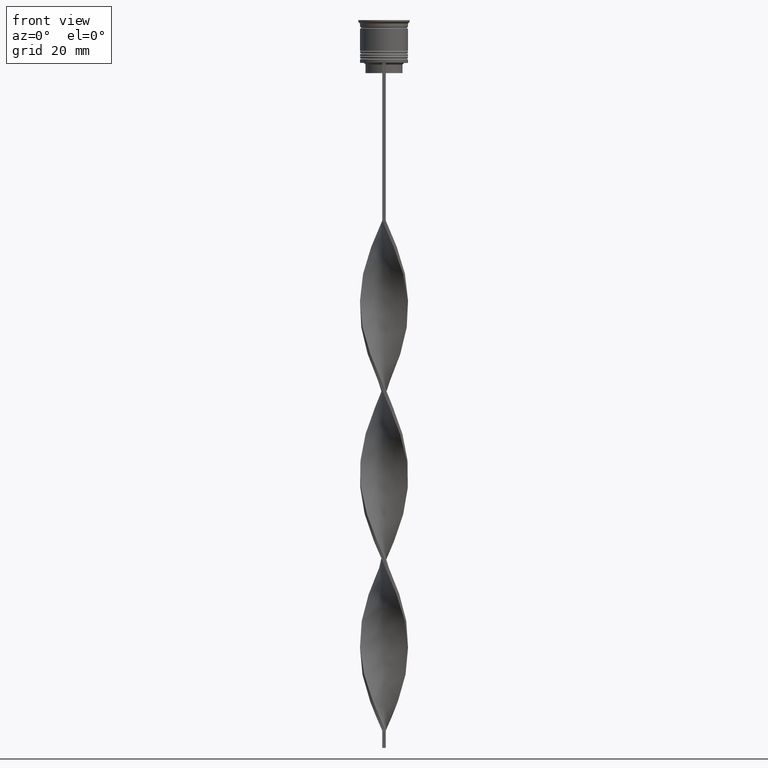
[diagram: clean part render]
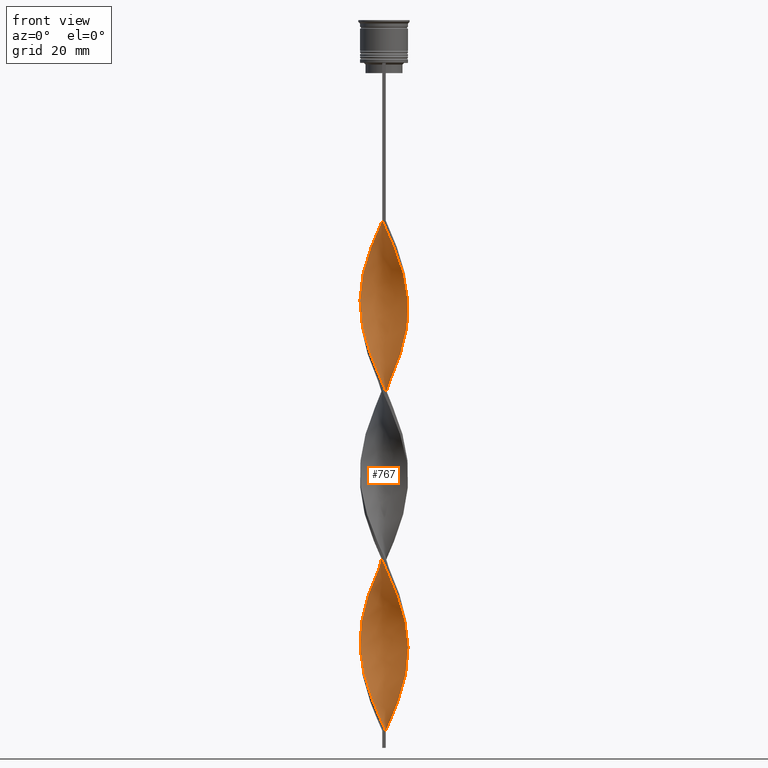
[diagram: same view with one face highlighted and labeled with its STEP entity id]
A machine part, front view. The second image highlights one B-rep face of the part: STEP entity #767.
In plain terms, the highlighted face is a freeform B-spline surface patch.
Its self-contained STEP definition (entity closure, byte-faithful):
#1 = CARTESIAN_POINT ( 'NONE',  ( 2.406820825421679189, 6.624205700879066683, -203.1176470588235361 ) ) ;
#7 =( BOUNDED_SURFACE ( )  B_SPLINE_SURFACE ( 1, 2, ( 
 ( #1530, #975, #2158, #280, #2481, #1247, #3687, #955, #301, #3058, #349, #2176, #3367, #1867, #913, #1481, #2698, #1409, #2659, #3869, #2354, #3287, #1139, #3562, #1762, #1198, #2998, #283, #2398, #3243, #531, #834, #3605, #304, #3224, #1807, #3518, #916, #873, #2094, #3260, #1503, #1725, #2720, #1228, #2333, #2936, #226, #1744, #1424, #1444, #1566, #1704, #2237, #501, #1650, #1924, #2918, #3174, #2864, #173, #1315, #1069, #3776, #2519, #1089, #1978, #3132, #489, #3426, #432, #1814, #3895, #1492, #270, #2409, #311, #1472, #1514, #2225, #3359, #3416, #2787, #663, #85, #339, #48, #2765, #359, #3826, #2383, #99, #3121, #904, #1796, #314, #3007, #1611, #2707, #1, #2731, #2032, #172 ),
 ( #1437, #3556, #2675, #2390, #3278, #587, #1221, #1464, #3579, #590, #2996, #991, #10, #3598, #2084, #622, #1820, #1542, #2045, #952, #2639, #1523, #2738, #34, #1242, #277, #1498, #3623, #1848, #2131, #3347, #651, #3882, #3576, #3864, #3053, #3364, #2368, #2455, #2674, #2434, #3010, #3641, #2712, #11, #885, #344, #949, #1780, #668, #3030, #2992, #1220, #1191, #2059, #3064, #2389, #3661, #604, #3277, #363, #926, #1801, #1544, #1257, #2087, #2755, #52, #909, #970, #586, #3599, #1177, #1477, #2154, #1863, #323, #2692, #3301, #297, #2415, #2106, #3322, #623, #1822, #2211, #752, #3422, #1005, #772, #3753, #733, #1935, #1899, #128, #2189, #1956, #3143, #2171, #1641, #1918, #2858, #152 ) ),
 .UNSPECIFIED., .F., .F., .F. ) 
 B_SPLINE_SURFACE_WITH_KNOTS ( ( 2, 2 ),
 ( 3, 2, 2, 2, 2, 2, 2, 2, 2, 2, 2, 2, 2, 2, 2, 2, 2, 2, 2, 2, 2, 2, 2, 2, 2, 2, 2, 2, 2, 2, 2, 2, 2, 2, 2, 2, 2, 2, 2, 2, 2, 2, 2, 2, 2, 2, 2, 2, 2, 2, 2, 3 ),
 ( 0.000000000000000000, 1.000000000000000000 ),
 ( 0.000000000000000000, 0.01470588235294117627, 0.02941176470588235253, 0.04411764705882353227, 0.05882352941176470507, 0.07352941176470588480, 0.08823529411764706454, 0.1029411764705882304, 0.1176470588235294101, 0.1323529411764705899, 0.1470588235294117696, 0.1617647058823529493, 0.1764705882352941291, 0.1911764705882352811, 0.2058823529411764608, 0.2205882352941176405, 0.2352941176470588203, 0.2500000000000000000, 0.2647058823529411797, 0.2794117647058823595, 0.2941176470588235392, 0.3088235294117647189, 0.3235294117647058987, 0.3382352941176470784, 0.3529411764705882582, 0.3676470588235294379, 0.3823529411764705621, 0.3970588235294117418, 0.4117647058823529216, 0.4264705882352941013, 0.4411764705882352811, 0.4558823529411764608, 0.4705882352941176405, 0.4852941176470588203, 0.5000000000000000000, 0.5147058823529411242, 0.5294117647058823595, 0.5441176470588234837, 0.5588235294117647189, 0.5735294117647058432, 0.5882352941176470784, 0.6029411764705882026, 0.6176470588235294379, 0.6323529411764705621, 0.6470588235294117974, 0.6617647058823529216, 0.6764705882352941568, 0.6911764705882352811, 0.7058823529411765163, 0.7205882352941176405, 0.7352941176470588758, 0.7500000000000000000 ),
 .UNSPECIFIED. ) 
 GEOMETRIC_REPRESENTATION_ITEM ( )  RATIONAL_B_SPLINE_SURFACE ( (
 ( 1.000000000000000000, 0.9957341762950344677, 1.000000000000000000, 0.9957341762950344677, 1.000000000000000000, 0.9957341762950344677, 1.000000000000000000, 0.9957341762950344677, 1.000000000000000000, 0.9957341762950344677, 1.000000000000000000, 0.9957341762950344677, 1.000000000000000000, 0.9957341762950344677, 1.000000000000000000, 0.9957341762950344677, 1.000000000000000000, 0.9957341762950344677, 1.000000000000000000, 0.9957341762950344677, 1.000000000000000000, 0.9957341762950344677, 1.000000000000000000, 0.9957341762950344677, 1.000000000000000000, 0.9957341762950344677, 1.000000000000000000, 0.9957341762950344677, 1.000000000000000000, 0.9957341762950344677, 1.000000000000000000, 0.9957341762950344677, 1.000000000000000000, 0.9957341762950344677, 1.000000000000000000, 0.9957341762950344677, 1.000000000000000000, 0.9957341762950344677, 1.000000000000000000, 0.9957341762950344677, 1.000000000000000000, 0.9957341762950344677, 1.000000000000000000, 0.9957341762950344677, 1.000000000000000000, 0.9957341762950344677, 1.000000000000000000, 0.9957341762950344677, 1.000000000000000000, 0.9957341762950344677, 1.000000000000000000, 0.9957341762950344677, 1.000000000000000000, 0.9957341762950344677, 1.000000000000000000, 0.9957341762950344677, 1.000000000000000000, 0.9957341762950344677, 1.000000000000000000, 0.9957341762950344677, 1.000000000000000000, 0.9957341762950344677, 1.000000000000000000, 0.9957341762950344677, 1.000000000000000000, 0.9957341762950344677, 1.000000000000000000, 0.9957341762950344677, 1.000000000000000000, 0.9957341762950344677, 1.000000000000000000, 0.9957341762950344677, 1.000000000000000000, 0.9957341762950344677, 1.000000000000000000, 0.9957341762950344677, 1.000000000000000000, 0.9957341762950344677, 1.000000000000000000, 0.9957341762950344677, 1.000000000000000000, 0.9957341762950344677, 1.000000000000000000, 0.9957341762950344677, 1.000000000000000000, 0.9957341762950344677, 1.000000000000000000, 0.9957341762950344677, 1.000000000000000000, 0.9957341762950344677, 1.000000000000000000, 0.9957341762950344677, 1.000000000000000000, 0.9957341762950344677, 1.000000000000000000, 0.9957341762950344677, 1.000000000000000000, 0.9957341762950344677, 1.000000000000000000, 0.9957341762950344677, 1.000000000000000000, 0.9957341762950344677, 1.000000000000000000),
 ( 1.000000000000000000, 0.9957341762950344677, 1.000000000000000000, 0.9957341762950344677, 1.000000000000000000, 0.9957341762950344677, 1.000000000000000000, 0.9957341762950344677, 1.000000000000000000, 0.9957341762950344677, 1.000000000000000000, 0.9957341762950344677, 1.000000000000000000, 0.9957341762950344677, 1.000000000000000000, 0.9957341762950344677, 1.000000000000000000, 0.9957341762950344677, 1.000000000000000000, 0.9957341762950344677, 1.000000000000000000, 0.9957341762950344677, 1.000000000000000000, 0.9957341762950344677, 1.000000000000000000, 0.9957341762950344677, 1.000000000000000000, 0.9957341762950344677, 1.000000000000000000, 0.9957341762950344677, 1.000000000000000000, 0.9957341762950344677, 1.000000000000000000, 0.9957341762950344677, 1.000000000000000000, 0.9957341762950344677, 1.000000000000000000, 0.9957341762950344677, 1.000000000000000000, 0.9957341762950344677, 1.000000000000000000, 0.9957341762950344677, 1.000000000000000000, 0.9957341762950344677, 1.000000000000000000, 0.9957341762950344677, 1.000000000000000000, 0.9957341762950344677, 1.000000000000000000, 0.9957341762950344677, 1.000000000000000000, 0.9957341762950344677, 1.000000000000000000, 0.9957341762950344677, 1.000000000000000000, 0.9957341762950344677, 1.000000000000000000, 0.9957341762950344677, 1.000000000000000000, 0.9957341762950344677, 1.000000000000000000, 0.9957341762950344677, 1.000000000000000000, 0.9957341762950344677, 1.000000000000000000, 0.9957341762950344677, 1.000000000000000000, 0.9957341762950344677, 1.000000000000000000, 0.9957341762950344677, 1.000000000000000000, 0.9957341762950344677, 1.000000000000000000, 0.9957341762950344677, 1.000000000000000000, 0.9957341762950344677, 1.000000000000000000, 0.9957341762950344677, 1.000000000000000000, 0.9957341762950344677, 1.000000000000000000, 0.9957341762950344677, 1.000000000000000000, 0.9957341762950344677, 1.000000000000000000, 0.9957341762950344677, 1.000000000000000000, 0.9957341762950344677, 1.000000000000000000, 0.9957341762950344677, 1.000000000000000000, 0.9957341762950344677, 1.000000000000000000, 0.9957341762950344677, 1.000000000000000000, 0.9957341762950344677, 1.000000000000000000, 0.9957341762950344677, 1.000000000000000000, 0.9957341762950344677, 1.000000000000000000, 0.9957341762950344677, 1.000000000000000000) ) ) 
 REPRESENTATION_ITEM ( '' )  SURFACE ( )  );
#10 = CARTESIAN_POINT ( 'NONE',  ( -6.489012217373707259, 2.672586844758237934, -76.02941176470586981 ) ) ;
#11 = CARTESIAN_POINT ( 'NONE',  ( 5.887437909151305604, -3.819433841014677533, -122.7745098039215605 ) ) ;
#13 = CARTESIAN_POINT ( 'NONE',  ( -4.856933420439688120, -5.107160209221786928, -194.3529411764705799 ) ) ;
#24 = CARTESIAN_POINT ( 'NONE',  ( -2.406820825421679189, 6.624205700879072012, -162.2156862745098351 ) ) ;
#34 = CARTESIAN_POINT ( 'NONE',  ( -5.712673125104412719, -4.127741927368047570, -92.09803921568628482 ) ) ;
#36 = CARTESIAN_POINT ( 'NONE',  ( -5.887437909151306492, 3.819433841014676645, -172.4411764705882035 ) ) ;
#48 = CARTESIAN_POINT ( 'NONE',  ( 7.016273413796890956, 0.1480114280955957262, -184.1274509803921546 ) ) ;
#52 = CARTESIAN_POINT ( 'NONE',  ( 0.1486455236942084146, 7.046331823121019688, -156.3725490196078454 ) ) ;
#85 = CARTESIAN_POINT ( 'NONE',  ( 6.924005054333587594, -1.143745604390631110, -181.2058823529411598 ) ) ;
#97 = DIRECTION ( 'NONE',  ( 0.000000000000000000, 1.000000000000000000, 0.000000000000000000 ) ) ;
#99 = CARTESIAN_POINT ( 'NONE',  ( 6.241360575439922620, 3.273882377329162985, -191.4313725490196134 ) ) ;
#112 = CARTESIAN_POINT ( 'NONE',  ( -0.1486455236942075542, -7.046331823121019688, -206.0392156862745026 ) ) ;
#115 = EDGE_CURVE ( 'NONE', #1829, #1219, #672, .T. ) ;
#124 = CARTESIAN_POINT ( 'NONE',  ( -7.002558135184068888, 0.7981649056490309757, -80.41176470588234793 ) ) ;
#125 = CARTESIAN_POINT ( 'NONE',  ( 2.994927778012247632, 6.346684772736912450, -102.3235294117646959 ) ) ;
#128 = CARTESIAN_POINT ( 'NONE',  ( -4.346365046915573238, -5.509910242367893396, -195.8137254901960773 ) ) ;
#132 = CARTESIAN_POINT ( 'NONE',  ( -0.5000000000000000000, -6.999999999999997335, -58.50000000000000000 ) ) ;
#147 = CARTESIAN_POINT ( 'NONE',  ( -5.712673125104412719, -4.127741927368047570, -92.09803921568628482 ) ) ;
#152 = CARTESIAN_POINT ( 'NONE',  ( 0.4999999999999991673, -7.000000000000002665, -207.5000000000000000 ) ) ;
#165 = CARTESIAN_POINT ( 'NONE',  ( -5.284803272772045979, 4.617451068294913696, -122.7745098039215605 ) ) ;
#172 = CARTESIAN_POINT ( 'NONE',  ( 0.5000000000000008882, 6.999999999999997335, -207.5000000000000000 ) ) ;
#173 = CARTESIAN_POINT ( 'NONE',  ( -5.085373964136228331, -4.836214598721334745, -146.1470588235294201 ) ) ;
#181 = CARTESIAN_POINT ( 'NONE',  ( -4.346365046915568797, 5.509910242367891620, -119.8529411764705799 ) ) ;
#198 = CARTESIAN_POINT ( 'NONE',  ( -4.110133708006299180, 5.688303868668623586, -67.26470588235292780 ) ) ;
#202 = CARTESIAN_POINT ( 'NONE',  ( -2.994927778012248520, -6.346684772736912450, -151.9901960784313530 ) ) ;
#215 = CARTESIAN_POINT ( 'NONE',  ( -6.241360575439923508, -3.273882377329162985, -141.7647058823529562 ) ) ;
#226 = CARTESIAN_POINT ( 'NONE',  ( -6.373874598089922294, 3.007758344858553201, -127.1568627450980102 ) ) ;
#230 = CARTESIAN_POINT ( 'NONE',  ( 6.595948007173689120, -2.396553752090988088, -178.2843137254901933 ) ) ;
#270 = CARTESIAN_POINT ( 'NONE',  ( 3.259916572276681634, -6.214736031545974981, -166.5980392156862706 ) ) ;
#277 = CARTESIAN_POINT ( 'NONE',  ( -4.856933420439688120, -5.107160209221786928, -95.01960784313725128 ) ) ;
#280 = CARTESIAN_POINT ( 'NONE',  ( 1.440874626053873842, -6.899041090270179311, -62.88235294117647811 ) ) ;
#283 = CARTESIAN_POINT ( 'NONE',  ( 4.637232685409776067, 5.307443892742482738, -97.94117647058824616 ) ) ;
#286 = CARTESIAN_POINT ( 'NONE',  ( -0.7947600748740422105, -6.972686456695599944, -105.2450980392156765 ) ) ;
#297 = CARTESIAN_POINT ( 'NONE',  ( -6.241360575439927061, 3.273882377329165205, -173.9019607843137294 ) ) ;
#301 = CARTESIAN_POINT ( 'NONE',  ( 4.346365046915568797, -5.509910242367891620, -70.18627450980390847 ) ) ;
#304 = CARTESIAN_POINT ( 'NONE',  ( 1.148645523694207249, 6.953668176878983864, -106.7058823529412024 ) ) ;
#311 = CARTESIAN_POINT ( 'NONE',  ( 4.346365046915568797, -5.509910242367891620, -169.5196078431372371 ) ) ;
#314 = CARTESIAN_POINT ( 'NONE',  ( 4.637232685409776067, 5.307443892742482738, -197.2745098039215463 ) ) ;
#323 = CARTESIAN_POINT ( 'NONE',  ( -5.085373964136232772, 4.836214598721336522, -169.5196078431372371 ) ) ;
#326 = CARTESIAN_POINT ( 'NONE',  ( -6.924005054333593812, -1.143745604390630666, -184.1274509803921546 ) ) ;
#335 = CARTESIAN_POINT ( 'NONE',  ( -3.583034730602820961, 6.069163844594761770, -165.1372549019608016 ) ) ;
#339 = CARTESIAN_POINT ( 'NONE',  ( 7.029988692409719242, -0.5021420494578376914, -182.6666666666666572 ) ) ;
#344 = CARTESIAN_POINT ( 'NONE',  ( 6.489012217373708147, -2.672586844758236158, -125.6960784313725412 ) ) ;
#346 = CARTESIAN_POINT ( 'NONE',  ( -5.085373964136232772, 4.836214598721336522, -169.5196078431372371 ) ) ;
#349 = CARTESIAN_POINT ( 'NONE',  ( 5.284803272772046867, -4.617451068294912808, -73.10784313725488914 ) ) ;
#359 = CARTESIAN_POINT ( 'NONE',  ( 6.869610997245771955, 1.434728108918170042, -187.0490196078431211 ) ) ;
#363 = CARTESIAN_POINT ( 'NONE',  ( 4.346365046915571462, 5.509910242367894284, -146.1470588235294201 ) ) ;
#365 = CARTESIAN_POINT ( 'NONE',  ( -6.869610997245777284, 1.434728108918170708, -178.2843137254901933 ) ) ;
#422 = CARTESIAN_POINT ( 'NONE',  ( -5.533515242862685923, 4.364985304700188529, -71.64705882352942012 ) ) ;
#423 = CARTESIAN_POINT ( 'NONE',  ( 4.110133708006296516, 5.688303868668619145, -99.40196078431372939 ) ) ;
#432 = CARTESIAN_POINT ( 'NONE',  ( 0.7947600748740408783, -6.972686456695594615, -160.7549019607842808 ) ) ;
#442 = CARTESIAN_POINT ( 'NONE',  ( 4.346365046915568797, -5.509910242367891620, -70.18627450980390847 ) ) ;
#461 = CARTESIAN_POINT ( 'NONE',  ( -4.856933420439688120, -5.107160209221786928, -95.01960784313726549 ) ) ;
#482 = CARTESIAN_POINT ( 'NONE',  ( -0.1486455236942086366, 7.046331823121012583, -109.6274509803921404 ) ) ;
#489 = CARTESIAN_POINT ( 'NONE',  ( -0.5000000000000000000, -6.999999999999997335, -157.8333333333333144 ) ) ;
#495 = CARTESIAN_POINT ( 'NONE',  ( 5.533515242862682371, 4.364985304700184976, -194.3529411764705799 ) ) ;
#497 = ORIENTED_EDGE ( 'NONE', *, *, #565, .T. ) ;
#501 = CARTESIAN_POINT ( 'NONE',  ( -6.869610997245771955, -1.434728108918169154, -137.3823529411764639 ) ) ;
#518 = CARTESIAN_POINT ( 'NONE',  ( 5.712673125104408278, -4.127741927368044017, -173.9019607843137294 ) ) ;
#531 = CARTESIAN_POINT ( 'NONE',  ( 2.994927778012247632, 6.346684772736912450, -102.3235294117646959 ) ) ;
#538 = CARTESIAN_POINT ( 'NONE',  ( 2.406820825421679189, 6.624205700879067571, -103.7843137254901791 ) ) ;
#552 = CARTESIAN_POINT ( 'NONE',  ( 3.259916572276687852, 6.214736031545977646, -149.0686274509803866 ) ) ;
#554 = CARTESIAN_POINT ( 'NONE',  ( -0.5000000000000000000, -6.999999999999997335, -157.8333333333333144 ) ) ;
#565 = EDGE_CURVE ( 'NONE', #1219, #1319, #3616, .T. ) ;
#586 = CARTESIAN_POINT ( 'NONE',  ( -1.777733174557943663, 6.788936938879031047, -160.7549019607842808 ) ) ;
#587 = CARTESIAN_POINT ( 'NONE',  ( -3.583034730602820517, 6.069163844594761770, -65.80392156862747299 ) ) ;
#590 = CARTESIAN_POINT ( 'NONE',  ( -5.533515242862685035, 4.364985304700188529, -71.64705882352943433 ) ) ;
#604 = CARTESIAN_POINT ( 'NONE',  ( 5.284803272772052196, 4.617451068294914585, -143.2254901960784537 ) ) ;
#612 = CARTESIAN_POINT ( 'NONE',  ( 2.062455548607894151, 6.707926438924069146, -151.9901960784313530 ) ) ;
#622 = CARTESIAN_POINT ( 'NONE',  ( -7.002558135184068000, 0.7981649056490309757, -80.41176470588234793 ) ) ;
#623 = CARTESIAN_POINT ( 'NONE',  ( -7.002558135184068000, 0.7981649056490309757, -179.7450980392157192 ) ) ;
#625 = CARTESIAN_POINT ( 'NONE',  ( -6.489012217373707259, 2.672586844758237934, -175.3627450980391984 ) ) ;
#631 = CARTESIAN_POINT ( 'NONE',  ( 5.712673125104412719, 4.127741927368047570, -141.7647058823529562 ) ) ;
#651 = CARTESIAN_POINT ( 'NONE',  ( -1.440874626053876728, -6.899041090270183751, -103.7843137254901933 ) ) ;
#663 = CARTESIAN_POINT ( 'NONE',  ( 6.818021416257458611, -1.785349159323424972, -179.7450980392157192 ) ) ;
#668 = CARTESIAN_POINT ( 'NONE',  ( 7.002558135184068000, -0.7981649056490286442, -130.0784313725490335 ) ) ;
#669 = CARTESIAN_POINT ( 'NONE',  ( -5.712673125104412719, -4.127741927368047570, -191.4313725490196134 ) ) ;
#672 = LINE ( 'NONE', #132, #3206 ) ;
#682 = CARTESIAN_POINT ( 'NONE',  ( 1.440874626053873619, -6.899041090270179311, -62.88235294117647101 ) ) ;
#691 = ORIENTED_EDGE ( 'NONE', *, *, #2925, .F. ) ;
#699 = CARTESIAN_POINT ( 'NONE',  ( 5.085373964136230107, 4.836214598721332081, -96.48039215686274872 ) ) ;
#730 = CARTESIAN_POINT ( 'NONE',  ( 2.062455548607891487, -6.707926438924064705, -64.34313725490196134 ) ) ;
#733 = CARTESIAN_POINT ( 'NONE',  ( -5.712673125104412719, -4.127741927368047570, -191.4313725490196134 ) ) ;
#752 = CARTESIAN_POINT ( 'NONE',  ( -6.924005054333593812, -1.143745604390630666, -184.1274509803921546 ) ) ;
#766 = CARTESIAN_POINT ( 'NONE',  ( -2.684036471161914239, -6.516811787577958093, -100.8627450980392126 ) ) ;
#767 = ADVANCED_FACE ( 'NONE', ( #3667 ), #7, .T. ) ;
#770 = CARTESIAN_POINT ( 'NONE',  ( 7.016273413796890956, 0.1480114280955957262, -84.79411764705882604 ) ) ;
#772 = CARTESIAN_POINT ( 'NONE',  ( -6.373874598089927623, -3.007758344858554977, -188.5098039215686185 ) ) ;
#795 = CARTESIAN_POINT ( 'NONE',  ( -6.043273861597169727, -3.567750136113299941, -90.63725490196078738 ) ) ;
#796 = CARTESIAN_POINT ( 'NONE',  ( 6.924005054333587594, -1.143745604390631110, -181.2058823529411598 ) ) ;
#806 = CARTESIAN_POINT ( 'NONE',  ( -0.5000000000000000000, 7.000000000000002665, -58.50000000000000000 ) ) ;
#808 = CARTESIAN_POINT ( 'NONE',  ( 2.684036471161910242, -6.516811787577953652, -165.1372549019608016 ) ) ;
#820 = CARTESIAN_POINT ( 'NONE',  ( -6.241360575439927949, 3.273882377329165205, -74.56862745098038658 ) ) ;
#822 = CARTESIAN_POINT ( 'NONE',  ( 0.7947600748740408783, -6.972686456695594615, -160.7549019607842808 ) ) ;
#824 =( BOUNDED_CURVE ( )  B_SPLINE_CURVE ( 2, ( #2206, #3378, #1002, #682, #730, #2229, #2473, #3680, #442, #1879, #3419, #2854, #2830, #3082, #2555, #1581, #3750, #2796, #770, #2187, #1059, #1950, #1914, #1598, #3167, #2810, #699, #3125, #423, #1616, #125, #538, #1151, #2299, #1732, #482, #3808, #3838, #2875, #3247, #861, #846, #181, #3766, #165, #2021, #3548, #2574, #2644, #1360, #1414, #3191, #2927, #2905, #1694, #1080, #3231, #215, #1971, #2039, #3209, #2627, #3508, #2266, #202, #2342, #3524, #3822, #554, #1100, #822, #2000, #3476, #808, #1714, #2890, #1128, #1398, #1373, #518, #2318, #2944, #230, #1430, #796, #3179, #1678, #2592, #2610, #3790, #2288, #3494, #1988, #495, #1114, #2963, #3020, #3589, #3313, #2729, #2986, #3336, #898 ),
 .UNSPECIFIED., .F., .T. ) 
 B_SPLINE_CURVE_WITH_KNOTS ( ( 3, 2, 2, 2, 2, 2, 2, 2, 2, 2, 2, 2, 2, 2, 2, 2, 2, 2, 2, 2, 2, 2, 2, 2, 2, 2, 2, 2, 2, 2, 2, 2, 2, 2, 2, 2, 2, 2, 2, 2, 2, 2, 2, 2, 2, 2, 2, 2, 2, 2, 2, 3 ),
 ( 0.000000000000000000, 0.01470588235294117453, 0.02941176470588234906, 0.04411764705882353227, 0.05882352941176469813, 0.07352941176470588480, 0.08823529411764706454, 0.1029411764705882443, 0.1176470588235293963, 0.1323529411764705899, 0.1470588235294117696, 0.1617647058823529493, 0.1764705882352941291, 0.1911764705882352811, 0.2058823529411764885, 0.2205882352941176405, 0.2352941176470587925, 0.2500000000000000000, 0.2647058823529411797, 0.2794117647058823595, 0.2941176470588235392, 0.3088235294117647189, 0.3235294117647058987, 0.3382352941176470229, 0.3529411764705882582, 0.3676470588235294379, 0.3823529411764705621, 0.3970588235294117418, 0.4117647058823529771, 0.4264705882352941013, 0.4411764705882352811, 0.4558823529411764608, 0.4705882352941175850, 0.4852941176470588203, 0.5000000000000000000, 0.5147058823529411242, 0.5294117647058823595, 0.5441176470588234837, 0.5588235294117647189, 0.5735294117647058432, 0.5882352941176470784, 0.6029411764705882026, 0.6176470588235294379, 0.6323529411764705621, 0.6470588235294117974, 0.6617647058823529216, 0.6764705882352940458, 0.6911764705882351700, 0.7058823529411765163, 0.7205882352941176405, 0.7352941176470588758, 0.7500000000000000000 ),
 .UNSPECIFIED. ) 
 CURVE ( )  GEOMETRIC_REPRESENTATION_ITEM ( )  RATIONAL_B_SPLINE_CURVE ( ( 1.000000000000000000, 0.9957341762950344677, 1.000000000000000000, 0.9957341762950344677, 1.000000000000000000, 0.9957341762950344677, 1.000000000000000000, 0.9957341762950344677, 1.000000000000000000, 0.9957341762950344677, 1.000000000000000000, 0.9957341762950344677, 1.000000000000000000, 0.9957341762950344677, 1.000000000000000000, 0.9957341762950344677, 1.000000000000000000, 0.9957341762950344677, 1.000000000000000000, 0.9957341762950344677, 1.000000000000000000, 0.9957341762950344677, 1.000000000000000000, 0.9957341762950344677, 1.000000000000000000, 0.9957341762950344677, 1.000000000000000000, 0.9957341762950344677, 1.000000000000000000, 0.9957341762950344677, 1.000000000000000000, 0.9957341762950344677, 1.000000000000000000, 0.9957341762950344677, 1.000000000000000000, 0.9957341762950344677, 1.000000000000000000, 0.9957341762950344677, 1.000000000000000000, 0.9957341762950344677, 1.000000000000000000, 0.9957341762950344677, 1.000000000000000000, 0.9957341762950344677, 1.000000000000000000, 0.9957341762950344677, 1.000000000000000000, 0.9957341762950344677, 1.000000000000000000, 0.9957341762950344677, 1.000000000000000000, 0.9957341762950344677, 1.000000000000000000, 0.9957341762950344677, 1.000000000000000000, 0.9957341762950344677, 1.000000000000000000, 0.9957341762950344677, 1.000000000000000000, 0.9957341762950344677, 1.000000000000000000, 0.9957341762950344677, 1.000000000000000000, 0.9957341762950344677, 1.000000000000000000, 0.9957341762950344677, 1.000000000000000000, 0.9957341762950344677, 1.000000000000000000, 0.9957341762950344677, 1.000000000000000000, 0.9957341762950344677, 1.000000000000000000, 0.9957341762950344677, 1.000000000000000000, 0.9957341762950344677, 1.000000000000000000, 0.9957341762950344677, 1.000000000000000000, 0.9957341762950344677, 1.000000000000000000, 0.9957341762950344677, 1.000000000000000000, 0.9957341762950344677, 1.000000000000000000, 0.9957341762950344677, 1.000000000000000000, 0.9957341762950344677, 1.000000000000000000, 0.9957341762950344677, 1.000000000000000000, 0.9957341762950344677, 1.000000000000000000, 0.9957341762950344677, 1.000000000000000000, 0.9957341762950344677, 1.000000000000000000, 0.9957341762950344677, 1.000000000000000000, 0.9957341762950344677, 1.000000000000000000, 0.9957341762950344677, 1.000000000000000000 ) ) 
 REPRESENTATION_ITEM ( '' )  );
#834 = CARTESIAN_POINT ( 'NONE',  ( 2.406820825421679189, 6.624205700879066683, -103.7843137254901933 ) ) ;
#846 = CARTESIAN_POINT ( 'NONE',  ( -3.835796673391454359, 5.912660275513999864, -118.3921568627451109 ) ) ;
#850 = B_SPLINE_CURVE_WITH_KNOTS ( 'NONE', 3,
 ( #2929, #1778, #1255, #3023 ),
 .UNSPECIFIED., .F., .F.,
 ( 4, 4 ),
 ( 0.000000000000000000, 1.000000000000000000 ),
 .UNSPECIFIED. ) ;
#857 = CARTESIAN_POINT ( 'NONE',  ( 4.346365046915571462, 5.509910242367894284, -146.1470588235294201 ) ) ;
#861 = CARTESIAN_POINT ( 'NONE',  ( -3.259916572276682523, 6.214736031545974093, -116.9313725490195992 ) ) ;
#871 = VERTEX_POINT ( 'NONE', #1560 ) ;
#873 = CARTESIAN_POINT ( 'NONE',  ( -2.062455548607892375, 6.707926438924063817, -114.0098039215686185 ) ) ;
#875 = CARTESIAN_POINT ( 'NONE',  ( 7.029988692409724571, 0.5021420494578359150, -133.0000000000000000 ) ) ;
#885 = CARTESIAN_POINT ( 'NONE',  ( 6.241360575439926173, -3.273882377329166538, -124.2352941176470580 ) ) ;
#893 = CARTESIAN_POINT ( 'NONE',  ( 3.835796673391459688, 5.912660275514002528, -147.6078431372548891 ) ) ;
#898 = CARTESIAN_POINT ( 'NONE',  ( 0.5000000000000008882, 6.999999999999997335, -207.5000000000000000 ) ) ;
#904 = CARTESIAN_POINT ( 'NONE',  ( 5.533515242862682371, 4.364985304700184976, -194.3529411764705799 ) ) ;
#909 = CARTESIAN_POINT ( 'NONE',  ( -0.5000000000000000000, 7.000000000000002665, -157.8333333333333144 ) ) ;
#913 = CARTESIAN_POINT ( 'NONE',  ( 6.595948007173689120, -2.396553752090988088, -78.95098039215686470 ) ) ;
#916 = CARTESIAN_POINT ( 'NONE',  ( -1.440874626053873842, 6.899041090270179311, -112.5490196078431495 ) ) ;
#919 = CARTESIAN_POINT ( 'NONE',  ( 5.085373964136232772, -4.836214598721336522, -119.8529411764705799 ) ) ;
#926 = CARTESIAN_POINT ( 'NONE',  ( 3.835796673391459688, 5.912660275514002528, -147.6078431372548891 ) ) ;
#935 = CARTESIAN_POINT ( 'NONE',  ( 5.284803272772052196, 4.617451068294914585, -143.2254901960784537 ) ) ;
#949 = CARTESIAN_POINT ( 'NONE',  ( 6.736663859307489233, -2.071291312187312439, -127.1568627450980102 ) ) ;
#950 = CARTESIAN_POINT ( 'NONE',  ( -0.7947600748740422105, -6.972686456695599944, -204.5784313725490335 ) ) ;
#952 = CARTESIAN_POINT ( 'NONE',  ( -6.818021416257463940, -1.785349159323426527, -86.25490196078432348 ) ) ;
#955 = CARTESIAN_POINT ( 'NONE',  ( 3.835796673391455691, -5.912660275513999864, -68.72549019607842524 ) ) ;
#970 = CARTESIAN_POINT ( 'NONE',  ( -1.148645523694208581, 6.953668176878987417, -159.2941176470588118 ) ) ;
#971 = CARTESIAN_POINT ( 'NONE',  ( -6.595948007173694450, -2.396553752090990752, -187.0490196078431211 ) ) ;
#975 = CARTESIAN_POINT ( 'NONE',  ( 0.1486455236942082203, -7.046331823121012583, -59.96078431372549744 ) ) ;
#991 = CARTESIAN_POINT ( 'NONE',  ( -6.241360575439927061, 3.273882377329165205, -74.56862745098038658 ) ) ;
#1002 = CARTESIAN_POINT ( 'NONE',  ( 0.7947600748740408783, -6.972686456695594615, -61.42156862745097357 ) ) ;
#1005 = CARTESIAN_POINT ( 'NONE',  ( -6.595948007173694450, -2.396553752090990752, -187.0490196078431211 ) ) ;
#1059 = CARTESIAN_POINT ( 'NONE',  ( 6.869610997245771955, 1.434728108918170042, -87.71568627450979250 ) ) ;
#1069 = CARTESIAN_POINT ( 'NONE',  ( -4.110133708006299180, -5.688303868668616481, -149.0686274509803866 ) ) ;
#1080 = CARTESIAN_POINT ( 'NONE',  ( -6.736663859307484792, -2.071291312187307554, -138.8431372549019329 ) ) ;
#1089 = CARTESIAN_POINT ( 'NONE',  ( -2.406820825421680077, -6.624205700879065795, -153.4509803921568789 ) ) ;
#1100 = CARTESIAN_POINT ( 'NONE',  ( 0.1486455236942082203, -7.046331823121012583, -159.2941176470588118 ) ) ;
#1114 = CARTESIAN_POINT ( 'NONE',  ( 5.085373964136230107, 4.836214598721332081, -195.8137254901960773 ) ) ;
#1128 = CARTESIAN_POINT ( 'NONE',  ( 4.346365046915568797, -5.509910242367891620, -169.5196078431372371 ) ) ;
#1139 = CARTESIAN_POINT ( 'NONE',  ( 6.489012217373702818, 2.672586844758234825, -90.63725490196078738 ) ) ;
#1143 = CARTESIAN_POINT ( 'NONE',  ( 1.440874626053877616, 6.899041090270182863, -153.4509803921568789 ) ) ;
#1151 = CARTESIAN_POINT ( 'NONE',  ( 1.777733174557942775, 6.788936938879025718, -105.2450980392156765 ) ) ;
#1166 = CARTESIAN_POINT ( 'NONE',  ( 5.533515242862686812, -4.364985304700187640, -121.3137254901960773 ) ) ;
#1177 = CARTESIAN_POINT ( 'NONE',  ( -2.994927778012249409, 6.346684772736916891, -163.6764705882352757 ) ) ;
#1182 = CARTESIAN_POINT ( 'NONE',  ( 6.818021416257463940, 1.785349159323427415, -135.9215686274509665 ) ) ;
#1191 = CARTESIAN_POINT ( 'NONE',  ( 6.818021416257463940, 1.785349159323427415, -135.9215686274509665 ) ) ;
#1198 = CARTESIAN_POINT ( 'NONE',  ( 5.533515242862682371, 4.364985304700184976, -95.01960784313725128 ) ) ;
#1201 = CARTESIAN_POINT ( 'NONE',  ( -1.148645523694208581, 6.953668176878987417, -159.2941176470588118 ) ) ;
#1219 = VERTEX_POINT ( 'NONE', #2165 ) ;
#1220 = CARTESIAN_POINT ( 'NONE',  ( 6.924005054333593812, 1.143745604390628445, -134.4607843137254974 ) ) ;
#1221 = CARTESIAN_POINT ( 'NONE',  ( -4.110133708006299180, 5.688303868668623586, -67.26470588235292780 ) ) ;
#1228 = CARTESIAN_POINT ( 'NONE',  ( -5.284803272772045979, 4.617451068294913696, -122.7745098039215605 ) ) ;
#1232 = CARTESIAN_POINT ( 'NONE',  ( 7.016273413796896286, -0.1480114280955963924, -131.5392156862745310 ) ) ;
#1242 = CARTESIAN_POINT ( 'NONE',  ( -5.284803272772051308, -4.617451068294915473, -93.55882352941176805 ) ) ;
#1243 = CARTESIAN_POINT ( 'NONE',  ( -3.259916572276684299, -6.214736031545979422, -198.7352941176470722 ) ) ;
#1247 = CARTESIAN_POINT ( 'NONE',  ( 2.684036471161910242, -6.516811787577953652, -65.80392156862747299 ) ) ;
#1255 = CARTESIAN_POINT ( 'NONE',  ( 0.4999999999999996669, -2.333333333333336590, -207.5000000000000000 ) ) ;
#1257 = CARTESIAN_POINT ( 'NONE',  ( 2.062455548607894151, 6.707926438924069146, -151.9901960784313530 ) ) ;
#1315 = CARTESIAN_POINT ( 'NONE',  ( -4.637232685409776956, -5.307443892742481850, -147.6078431372548891 ) ) ;
#1319 = VERTEX_POINT ( 'NONE', #2569 ) ;
#1323 = CARTESIAN_POINT ( 'NONE',  ( -7.016273413796895397, 0.1480114280955971418, -81.87254901960783116 ) ) ;
#1360 = CARTESIAN_POINT ( 'NONE',  ( -6.818021416257460388, 1.785349159323422308, -130.0784313725490335 ) ) ;
#1373 = CARTESIAN_POINT ( 'NONE',  ( 5.284803272772046867, -4.617451068294912808, -172.4411764705882035 ) ) ;
#1395 = CARTESIAN_POINT ( 'NONE',  ( -5.887437909151306492, 3.819433841014676645, -73.10784313725488914 ) ) ;
#1398 = CARTESIAN_POINT ( 'NONE',  ( 4.856933420439684568, -5.107160209221783376, -170.9803921568627629 ) ) ;
#1409 = CARTESIAN_POINT ( 'NONE',  ( 7.029988692409719242, -0.5021420494578376914, -83.33333333333332860 ) ) ;
#1414 = CARTESIAN_POINT ( 'NONE',  ( -6.924005054333588483, 1.143745604390630444, -131.5392156862745310 ) ) ;
#1424 = CARTESIAN_POINT ( 'NONE',  ( -6.818021416257460388, 1.785349159323422530, -130.0784313725490335 ) ) ;
#1430 = CARTESIAN_POINT ( 'NONE',  ( 6.818021416257458611, -1.785349159323424972, -179.7450980392157476 ) ) ;
#1437 = CARTESIAN_POINT ( 'NONE',  ( -0.5000000000000000000, 7.000000000000002665, -58.50000000000000000 ) ) ;
#1444 = CARTESIAN_POINT ( 'NONE',  ( -6.924005054333588483, 1.143745604390630444, -131.5392156862745310 ) ) ;
#1464 = CARTESIAN_POINT ( 'NONE',  ( -4.637232685409779620, 5.307443892742487179, -68.72549019607842524 ) ) ;
#1472 = CARTESIAN_POINT ( 'NONE',  ( 4.856933420439684568, -5.107160209221783376, -170.9803921568627629 ) ) ;
#1477 = CARTESIAN_POINT ( 'NONE',  ( -3.583034730602820517, 6.069163844594761770, -165.1372549019608016 ) ) ;
#1481 = CARTESIAN_POINT ( 'NONE',  ( 6.818021416257458611, -1.785349159323424972, -80.41176470588234793 ) ) ;
#1485 = CARTESIAN_POINT ( 'NONE',  ( 2.994927778012250741, -6.346684772736916003, -114.0098039215686185 ) ) ;
#1492 = CARTESIAN_POINT ( 'NONE',  ( 2.684036471161910242, -6.516811787577953652, -165.1372549019608016 ) ) ;
#1498 = CARTESIAN_POINT ( 'NONE',  ( -4.346365046915573238, -5.509910242367893396, -96.48039215686274872 ) ) ;
#1499 = CARTESIAN_POINT ( 'NONE',  ( -6.736663859307489233, 2.071291312187312883, -176.8235294117647243 ) ) ;
#1503 = CARTESIAN_POINT ( 'NONE',  ( -3.835796673391454803, 5.912660275514000752, -118.3921568627451109 ) ) ;
#1507 = CARTESIAN_POINT ( 'NONE',  ( 4.110133708006299180, -5.688303868668622698, -116.9313725490195992 ) ) ;
#1514 = CARTESIAN_POINT ( 'NONE',  ( 5.284803272772046867, -4.617451068294912808, -172.4411764705882035 ) ) ;
#1523 = CARTESIAN_POINT ( 'NONE',  ( -6.373874598089927623, -3.007758344858554977, -89.17647058823527573 ) ) ;
#1526 = CARTESIAN_POINT ( 'NONE',  ( -3.835796673391458800, -5.912660275514003416, -197.2745098039215463 ) ) ;
#1530 = CARTESIAN_POINT ( 'NONE',  ( -0.5000000000000000000, -6.999999999999997335, -58.50000000000000000 ) ) ;
#1536 = CARTESIAN_POINT ( 'NONE',  ( 6.869610997245777284, -1.434728108918172929, -128.6176470588235361 ) ) ;
#1542 = CARTESIAN_POINT ( 'NONE',  ( -7.029988692409723683, -0.5021420494578368032, -83.33333333333332860 ) ) ;
#1544 = CARTESIAN_POINT ( 'NONE',  ( 2.684036471161911575, 6.516811787577959869, -150.5294117647058840 ) ) ;
#1560 = CARTESIAN_POINT ( 'NONE',  ( 0.5000000000000008882, 6.999999999999997335, -207.5000000000000000 ) ) ;
#1561 = CARTESIAN_POINT ( 'NONE',  ( -4.346365046915573238, -5.509910242367893396, -195.8137254901960773 ) ) ;
#1566 = CARTESIAN_POINT ( 'NONE',  ( -7.029988692409719242, 0.5021420494578385796, -133.0000000000000000 ) ) ;
#1581 = CARTESIAN_POINT ( 'NONE',  ( 6.818021416257458611, -1.785349159323424972, -80.41176470588234793 ) ) ;
#1598 = CARTESIAN_POINT ( 'NONE',  ( 6.241360575439923508, 3.273882377329162985, -92.09803921568628482 ) ) ;
#1611 = CARTESIAN_POINT ( 'NONE',  ( 3.583034730602818296, 6.069163844594755552, -200.1960784313725981 ) ) ;
#1614 = CARTESIAN_POINT ( 'NONE',  ( -6.489012217373707259, 2.672586844758237934, -76.02941176470586981 ) ) ;
#1616 = CARTESIAN_POINT ( 'NONE',  ( 3.583034730602818740, 6.069163844594755552, -100.8627450980392126 ) ) ;
#1634 = CARTESIAN_POINT ( 'NONE',  ( -6.818021416257463940, -1.785349159323426527, -86.25490196078432348 ) ) ;
#1641 = CARTESIAN_POINT ( 'NONE',  ( -1.440874626053876728, -6.899041090270183751, -203.1176470588235361 ) ) ;
#1650 = CARTESIAN_POINT ( 'NONE',  ( -6.736663859307484792, -2.071291312187307998, -138.8431372549019045 ) ) ;
#1678 = CARTESIAN_POINT ( 'NONE',  ( 7.016273413796890956, 0.1480114280955957262, -184.1274509803921546 ) ) ;
#1690 = CARTESIAN_POINT ( 'NONE',  ( -3.583034730602820961, 6.069163844594761770, -65.80392156862745878 ) ) ;
#1694 = CARTESIAN_POINT ( 'NONE',  ( -6.869610997245771955, -1.434728108918169154, -137.3823529411764639 ) ) ;
#1704 = CARTESIAN_POINT ( 'NONE',  ( -7.016273413796890956, -0.1480114280955932282, -134.4607843137254974 ) ) ;
#1714 = CARTESIAN_POINT ( 'NONE',  ( 3.259916572276681634, -6.214736031545974981, -166.5980392156862706 ) ) ;
#1725 = CARTESIAN_POINT ( 'NONE',  ( -4.346365046915568797, 5.509910242367891620, -119.8529411764705799 ) ) ;
#1732 = CARTESIAN_POINT ( 'NONE',  ( 0.5000000000000008882, 6.999999999999997335, -108.1666666666666572 ) ) ;
#1744 = CARTESIAN_POINT ( 'NONE',  ( -6.595948007173689120, 2.396553752090990752, -128.6176470588235361 ) ) ;
#1762 = CARTESIAN_POINT ( 'NONE',  ( 5.887437909151303828, 3.819433841014672648, -93.55882352941176805 ) ) ;
#1767 = CARTESIAN_POINT ( 'NONE',  ( -2.062455548607893263, -6.707926438924069146, -102.3235294117646959 ) ) ;
#1778 = CARTESIAN_POINT ( 'NONE',  ( 0.5000000000000003331, 2.333333333333331261, -207.5000000000000000 ) ) ;
#1780 = CARTESIAN_POINT ( 'NONE',  ( 6.869610997245777284, -1.434728108918172929, -128.6176470588235361 ) ) ;
#1796 = CARTESIAN_POINT ( 'NONE',  ( 5.085373964136230107, 4.836214598721332081, -195.8137254901960773 ) ) ;
#1801 = CARTESIAN_POINT ( 'NONE',  ( 3.259916572276687852, 6.214736031545977646, -149.0686274509803866 ) ) ;
#1802 = CARTESIAN_POINT ( 'NONE',  ( -7.029988692409724571, -0.5021420494578368032, -182.6666666666666856 ) ) ;
#1807 = CARTESIAN_POINT ( 'NONE',  ( -0.1486455236942086366, 7.046331823121012583, -109.6274509803921546 ) ) ;
#1809 = CARTESIAN_POINT ( 'NONE',  ( 0.4999999999999991673, -7.000000000000002665, -108.1666666666666572 ) ) ;
#1814 = CARTESIAN_POINT ( 'NONE',  ( 1.440874626053873842, -6.899041090270179311, -162.2156862745098351 ) ) ;
#1820 = CARTESIAN_POINT ( 'NONE',  ( -7.016273413796895397, 0.1480114280955971418, -81.87254901960783116 ) ) ;
#1822 = CARTESIAN_POINT ( 'NONE',  ( -7.016273413796895397, 0.1480114280955971418, -181.2058823529411598 ) ) ;
#1824 = CARTESIAN_POINT ( 'NONE',  ( -6.818021416257463940, -1.785349159323426527, -185.5882352941176237 ) ) ;
#1829 = VERTEX_POINT ( 'NONE', #3017 ) ;
#1832 = CARTESIAN_POINT ( 'NONE',  ( -2.994927778012249409, 6.346684772736916891, -163.6764705882352757 ) ) ;
#1848 = CARTESIAN_POINT ( 'NONE',  ( -3.259916572276684299, -6.214736031545979422, -99.40196078431372939 ) ) ;
#1863 = CARTESIAN_POINT ( 'NONE',  ( -4.637232685409779620, 5.307443892742487179, -168.0588235294117680 ) ) ;
#1864 = CARTESIAN_POINT ( 'NONE',  ( -6.373874598089927623, -3.007758344858554977, -188.5098039215686185 ) ) ;
#1867 = CARTESIAN_POINT ( 'NONE',  ( 6.373874598089922294, -3.007758344858553201, -77.49019607843138147 ) ) ;
#1879 = CARTESIAN_POINT ( 'NONE',  ( 4.856933420439684568, -5.107160209221783376, -71.64705882352942012 ) ) ;
#1899 = CARTESIAN_POINT ( 'NONE',  ( -4.856933420439688120, -5.107160209221786928, -194.3529411764705799 ) ) ;
#1914 = CARTESIAN_POINT ( 'NONE',  ( 6.489012217373702818, 2.672586844758234825, -90.63725490196078738 ) ) ;
#1918 = CARTESIAN_POINT ( 'NONE',  ( -0.7947600748740422105, -6.972686456695599944, -204.5784313725490335 ) ) ;
#1924 = CARTESIAN_POINT ( 'NONE',  ( -6.489012217373701930, -2.672586844758237490, -140.3039215686274588 ) ) ;
#1935 = CARTESIAN_POINT ( 'NONE',  ( -5.284803272772051308, -4.617451068294915473, -192.8921568627450824 ) ) ;
#1950 = CARTESIAN_POINT ( 'NONE',  ( 6.736663859307483904, 2.071291312187309774, -89.17647058823528994 ) ) ;
#1956 = CARTESIAN_POINT ( 'NONE',  ( -3.259916572276684299, -6.214736031545979422, -198.7352941176470722 ) ) ;
#1971 = CARTESIAN_POINT ( 'NONE',  ( -5.887437909151304716, -3.819433841014671760, -143.2254901960784537 ) ) ;
#1978 = CARTESIAN_POINT ( 'NONE',  ( -1.777733174557940776, -6.788936938879025718, -154.9117647058823479 ) ) ;
#1985 = CARTESIAN_POINT ( 'NONE',  ( -2.994927778012249409, 6.346684772736916891, -64.34313725490196134 ) ) ;
#1988 = CARTESIAN_POINT ( 'NONE',  ( 5.887437909151303828, 3.819433841014672648, -192.8921568627450824 ) ) ;
#2000 = CARTESIAN_POINT ( 'NONE',  ( 1.440874626053873619, -6.899041090270179311, -162.2156862745098351 ) ) ;
#2021 = CARTESIAN_POINT ( 'NONE',  ( -5.712673125104407390, 4.127741927368045793, -124.2352941176470580 ) ) ;
#2032 = CARTESIAN_POINT ( 'NONE',  ( 1.148645523694207249, 6.953668176878983864, -206.0392156862745026 ) ) ;
#2034 = CARTESIAN_POINT ( 'NONE',  ( 4.856933420439687232, 5.107160209221788705, -144.6862745098039227 ) ) ;
#2039 = CARTESIAN_POINT ( 'NONE',  ( -5.533515242862680594, -4.364985304700186752, -144.6862745098039227 ) ) ;
#2045 = CARTESIAN_POINT ( 'NONE',  ( -6.924005054333593812, -1.143745604390630666, -84.79411764705882604 ) ) ;
#2059 = CARTESIAN_POINT ( 'NONE',  ( 6.595948007173694450, 2.396553752090989864, -137.3823529411764639 ) ) ;
#2070 = CARTESIAN_POINT ( 'NONE',  ( -0.5000000000000000000, 7.000000000000002665, -157.8333333333333144 ) ) ;
#2084 = CARTESIAN_POINT ( 'NONE',  ( -6.869610997245777284, 1.434728108918170708, -78.95098039215686470 ) ) ;
#2087 = CARTESIAN_POINT ( 'NONE',  ( 1.440874626053877616, 6.899041090270182863, -153.4509803921568789 ) ) ;
#2089 = CARTESIAN_POINT ( 'NONE',  ( -7.016273413796895397, 0.1480114280955971418, -181.2058823529411598 ) ) ;
#2094 = CARTESIAN_POINT ( 'NONE',  ( -2.684036471161910242, 6.516811787577953652, -115.4705882352940876 ) ) ;
#2106 = CARTESIAN_POINT ( 'NONE',  ( -6.736663859307489233, 2.071291312187312439, -176.8235294117647243 ) ) ;
#2131 = CARTESIAN_POINT ( 'NONE',  ( -2.684036471161914239, -6.516811787577958093, -100.8627450980392126 ) ) ;
#2154 = CARTESIAN_POINT ( 'NONE',  ( -4.110133708006299180, 5.688303868668623586, -166.5980392156862706 ) ) ;
#2158 = CARTESIAN_POINT ( 'NONE',  ( 0.7947600748740408783, -6.972686456695594615, -61.42156862745097357 ) ) ;
#2165 = CARTESIAN_POINT ( 'NONE',  ( -0.5000000000000000000, 7.000000000000002665, -58.50000000000000000 ) ) ;
#2171 = CARTESIAN_POINT ( 'NONE',  ( -2.062455548607893263, -6.707926438924069146, -201.6568627450980387 ) ) ;
#2172 = CARTESIAN_POINT ( 'NONE',  ( 0.4999999999999991673, -7.000000000000002665, -207.5000000000000000 ) ) ;
#2176 = CARTESIAN_POINT ( 'NONE',  ( 5.712673125104408278, -4.127741927368044905, -74.56862745098038658 ) ) ;
#2187 = CARTESIAN_POINT ( 'NONE',  ( 7.002558135184063559, 0.7981649056490307537, -86.25490196078432348 ) ) ;
#2189 = CARTESIAN_POINT ( 'NONE',  ( -3.835796673391458800, -5.912660275514003416, -197.2745098039215463 ) ) ;
#2206 = CARTESIAN_POINT ( 'NONE',  ( -0.5000000000000000000, -6.999999999999997335, -58.50000000000000000 ) ) ;
#2211 = CARTESIAN_POINT ( 'NONE',  ( -7.029988692409723683, -0.5021420494578368032, -182.6666666666666572 ) ) ;
#2225 = CARTESIAN_POINT ( 'NONE',  ( 5.712673125104408278, -4.127741927368044905, -173.9019607843137294 ) ) ;
#2229 = CARTESIAN_POINT ( 'NONE',  ( 2.684036471161910242, -6.516811787577953652, -65.80392156862745878 ) ) ;
#2237 = CARTESIAN_POINT ( 'NONE',  ( -7.002558135184062671, -0.7981649056490314198, -135.9215686274509665 ) ) ;
#2247 = CARTESIAN_POINT ( 'NONE',  ( -3.259916572276684299, -6.214736031545979422, -99.40196078431372939 ) ) ;
#2266 = CARTESIAN_POINT ( 'NONE',  ( -3.583034730602817408, -6.069163844594757329, -150.5294117647058840 ) ) ;
#2288 = CARTESIAN_POINT ( 'NONE',  ( 6.489012217373702818, 2.672586844758234825, -189.9705882352941160 ) ) ;
#2299 = CARTESIAN_POINT ( 'NONE',  ( 1.148645523694207471, 6.953668176878983864, -106.7058823529411882 ) ) ;
#2318 = CARTESIAN_POINT ( 'NONE',  ( 6.043273861597165286, -3.567750136113298165, -175.3627450980391984 ) ) ;
#2331 = ORIENTED_EDGE ( 'NONE', *, *, #115, .T. ) ;
#2333 = CARTESIAN_POINT ( 'NONE',  ( -5.712673125104407390, 4.127741927368045793, -124.2352941176470580 ) ) ;
#2335 = CARTESIAN_POINT ( 'NONE',  ( 3.583034730602820073, -6.069163844594761770, -115.4705882352941018 ) ) ;
#2342 = CARTESIAN_POINT ( 'NONE',  ( -2.406820825421679633, -6.624205700879066683, -153.4509803921568789 ) ) ;
#2354 = CARTESIAN_POINT ( 'NONE',  ( 6.869610997245771955, 1.434728108918170042, -87.71568627450979250 ) ) ;
#2356 = CARTESIAN_POINT ( 'NONE',  ( 6.241360575439927061, -3.273882377329166538, -124.2352941176470580 ) ) ;
#2368 = CARTESIAN_POINT ( 'NONE',  ( 2.406820825421679189, -6.624205700879071124, -112.5490196078431495 ) ) ;
#2376 = CARTESIAN_POINT ( 'NONE',  ( 6.595948007173694450, 2.396553752090989864, -137.3823529411764639 ) ) ;
#2383 = CARTESIAN_POINT ( 'NONE',  ( 6.489012217373702818, 2.672586844758234825, -189.9705882352941160 ) ) ;
#2389 = CARTESIAN_POINT ( 'NONE',  ( 6.043273861597169727, 3.567750136113302162, -140.3039215686274588 ) ) ;
#2390 = CARTESIAN_POINT ( 'NONE',  ( -2.406820825421679189, 6.624205700879071124, -62.88235294117647811 ) ) ;
#2398 = CARTESIAN_POINT ( 'NONE',  ( 4.110133708006296516, 5.688303868668619145, -99.40196078431372939 ) ) ;
#2409 = CARTESIAN_POINT ( 'NONE',  ( 3.835796673391455691, -5.912660275513999864, -168.0588235294117680 ) ) ;
#2415 = CARTESIAN_POINT ( 'NONE',  ( -6.489012217373707259, 2.672586844758237934, -175.3627450980391984 ) ) ;
#2417 = CARTESIAN_POINT ( 'NONE',  ( -7.002558135184068888, 0.7981649056490309757, -179.7450980392157476 ) ) ;
#2425 = CARTESIAN_POINT ( 'NONE',  ( 5.887437909151305604, -3.819433841014677533, -122.7745098039215605 ) ) ;
#2434 = CARTESIAN_POINT ( 'NONE',  ( 4.110133708006299180, -5.688303868668622698, -116.9313725490195992 ) ) ;
#2435 = CARTESIAN_POINT ( 'NONE',  ( -2.684036471161914239, -6.516811787577958093, -200.1960784313725696 ) ) ;
#2455 = CARTESIAN_POINT ( 'NONE',  ( 2.994927778012250741, -6.346684772736916003, -114.0098039215686185 ) ) ;
#2473 = CARTESIAN_POINT ( 'NONE',  ( 3.259916572276681634, -6.214736031545974981, -67.26470588235292780 ) ) ;
#2481 = CARTESIAN_POINT ( 'NONE',  ( 2.062455548607891487, -6.707926438924064705, -64.34313725490196134 ) ) ;
#2519 = CARTESIAN_POINT ( 'NONE',  ( -2.994927778012248520, -6.346684772736912450, -151.9901960784313530 ) ) ;
#2552 = CARTESIAN_POINT ( 'NONE',  ( -5.284803272772051308, -4.617451068294915473, -93.55882352941176805 ) ) ;
#2555 = CARTESIAN_POINT ( 'NONE',  ( 6.595948007173689120, -2.396553752090988088, -78.95098039215686470 ) ) ;
#2557 = ORIENTED_EDGE ( 'NONE', *, *, #3208, .F. ) ;
#2569 = CARTESIAN_POINT ( 'NONE',  ( 0.4999999999999991673, -7.000000000000002665, -207.5000000000000000 ) ) ;
#2571 = CARTESIAN_POINT ( 'NONE',  ( -5.085373964136232772, 4.836214598721336522, -70.18627450980390847 ) ) ;
#2574 = CARTESIAN_POINT ( 'NONE',  ( -6.373874598089922294, 3.007758344858553201, -127.1568627450980244 ) ) ;
#2592 = CARTESIAN_POINT ( 'NONE',  ( 7.002558135184063559, 0.7981649056490307537, -185.5882352941176237 ) ) ;
#2608 = CARTESIAN_POINT ( 'NONE',  ( -2.406820825421679189, 6.624205700879072012, -62.88235294117647101 ) ) ;
#2610 = CARTESIAN_POINT ( 'NONE',  ( 6.869610997245771955, 1.434728108918170042, -187.0490196078431211 ) ) ;
#2627 = CARTESIAN_POINT ( 'NONE',  ( -4.637232685409776067, -5.307443892742481850, -147.6078431372548891 ) ) ;
#2639 = CARTESIAN_POINT ( 'NONE',  ( -6.595948007173694450, -2.396553752090990752, -87.71568627450979250 ) ) ;
#2644 = CARTESIAN_POINT ( 'NONE',  ( -6.595948007173689120, 2.396553752090990752, -128.6176470588235361 ) ) ;
#2659 = CARTESIAN_POINT ( 'NONE',  ( 7.016273413796890956, 0.1480114280955957262, -84.79411764705882604 ) ) ;
#2661 = CARTESIAN_POINT ( 'NONE',  ( 2.406820825421679189, -6.624205700879072012, -112.5490196078431495 ) ) ;
#2674 = CARTESIAN_POINT ( 'NONE',  ( 3.583034730602819629, -6.069163844594761770, -115.4705882352940876 ) ) ;
#2675 = CARTESIAN_POINT ( 'NONE',  ( -1.777733174557943663, 6.788936938879031047, -61.42156862745097357 ) ) ;
#2682 = CARTESIAN_POINT ( 'NONE',  ( -1.440874626053876728, -6.899041090270183751, -103.7843137254901791 ) ) ;
#2692 = CARTESIAN_POINT ( 'NONE',  ( -5.533515242862685035, 4.364985304700188529, -170.9803921568627629 ) ) ;
#2698 = CARTESIAN_POINT ( 'NONE',  ( 6.924005054333587594, -1.143745604390631110, -81.87254901960783116 ) ) ;
#2702 = CARTESIAN_POINT ( 'NONE',  ( 6.924005054333593812, 1.143745604390628445, -134.4607843137254974 ) ) ;
#2707 = CARTESIAN_POINT ( 'NONE',  ( 2.994927778012247632, 6.346684772736912450, -201.6568627450980387 ) ) ;
#2712 = CARTESIAN_POINT ( 'NONE',  ( 5.533515242862685923, -4.364985304700187640, -121.3137254901960631 ) ) ;
#2713 = CARTESIAN_POINT ( 'NONE',  ( -6.043273861597169727, -3.567750136113299941, -189.9705882352941160 ) ) ;
#2720 = CARTESIAN_POINT ( 'NONE',  ( -4.856933420439685456, 5.107160209221782488, -121.3137254901960631 ) ) ;
#2725 = CARTESIAN_POINT ( 'NONE',  ( -1.777733174557943663, 6.788936938879031047, -160.7549019607842808 ) ) ;
#2729 = CARTESIAN_POINT ( 'NONE',  ( 2.406820825421679189, 6.624205700879067571, -203.1176470588235361 ) ) ;
#2731 = CARTESIAN_POINT ( 'NONE',  ( 1.777733174557942775, 6.788936938879025718, -204.5784313725490335 ) ) ;
#2738 = CARTESIAN_POINT ( 'NONE',  ( -6.043273861597169727, -3.567750136113299941, -90.63725490196078738 ) ) ;
#2755 = CARTESIAN_POINT ( 'NONE',  ( 0.7947600748740401011, 6.972686456695599944, -154.9117647058823479 ) ) ;
#2765 = CARTESIAN_POINT ( 'NONE',  ( 7.002558135184062671, 0.7981649056490307537, -185.5882352941176237 ) ) ;
#2772 = CARTESIAN_POINT ( 'NONE',  ( -1.440874626053876728, -6.899041090270183751, -203.1176470588235361 ) ) ;
#2787 = CARTESIAN_POINT ( 'NONE',  ( 6.595948007173689120, -2.396553752090988088, -178.2843137254901933 ) ) ;
#2796 = CARTESIAN_POINT ( 'NONE',  ( 7.029988692409719242, -0.5021420494578376914, -83.33333333333332860 ) ) ;
#2810 = CARTESIAN_POINT ( 'NONE',  ( 5.533515242862682371, 4.364985304700184976, -95.01960784313726549 ) ) ;
#2829 = CARTESIAN_POINT ( 'NONE',  ( -6.736663859307489233, 2.071291312187312883, -77.49019607843136725 ) ) ;
#2830 = CARTESIAN_POINT ( 'NONE',  ( 6.043273861597165286, -3.567750136113298165, -76.02941176470586981 ) ) ;
#2851 = CARTESIAN_POINT ( 'NONE',  ( -6.373874598089927623, -3.007758344858554977, -89.17647058823528994 ) ) ;
#2854 = CARTESIAN_POINT ( 'NONE',  ( 5.712673125104408278, -4.127741927368044017, -74.56862745098038658 ) ) ;
#2858 = CARTESIAN_POINT ( 'NONE',  ( -0.1486455236942075542, -7.046331823121019688, -206.0392156862745026 ) ) ;
#2864 = CARTESIAN_POINT ( 'NONE',  ( -5.533515242862680594, -4.364985304700186752, -144.6862745098039227 ) ) ;
#2873 = CARTESIAN_POINT ( 'NONE',  ( -3.835796673391458800, -5.912660275514003416, -97.94117647058824616 ) ) ;
#2875 = CARTESIAN_POINT ( 'NONE',  ( -2.062455548607892375, 6.707926438924063817, -114.0098039215686185 ) ) ;
#2890 = CARTESIAN_POINT ( 'NONE',  ( 3.835796673391455247, -5.912660275513998975, -168.0588235294117680 ) ) ;
#2905 = CARTESIAN_POINT ( 'NONE',  ( -7.002558135184063559, -0.7981649056490314198, -135.9215686274509665 ) ) ;
#2918 = CARTESIAN_POINT ( 'NONE',  ( -6.241360575439922620, -3.273882377329162985, -141.7647058823529562 ) ) ;
#2925 = EDGE_CURVE ( 'NONE', #871, #1319, #850, .T. ) ;
#2927 = CARTESIAN_POINT ( 'NONE',  ( -7.016273413796890956, -0.1480114280955932282, -134.4607843137254974 ) ) ;
#2929 = CARTESIAN_POINT ( 'NONE',  ( 0.5000000000000008882, 6.999999999999997335, -207.5000000000000000 ) ) ;
#2936 = CARTESIAN_POINT ( 'NONE',  ( -6.043273861597166174, 3.567750136113296389, -125.6960784313725412 ) ) ;
#2944 = CARTESIAN_POINT ( 'NONE',  ( 6.373874598089922294, -3.007758344858553201, -176.8235294117647243 ) ) ;
#2963 = CARTESIAN_POINT ( 'NONE',  ( 4.637232685409776067, 5.307443892742482738, -197.2745098039215463 ) ) ;
#2986 = CARTESIAN_POINT ( 'NONE',  ( 1.777733174557942775, 6.788936938879025718, -204.5784313725490335 ) ) ;
#2992 = CARTESIAN_POINT ( 'NONE',  ( 7.029988692409723683, 0.5021420494578359150, -133.0000000000000000 ) ) ;
#2993 = CARTESIAN_POINT ( 'NONE',  ( -4.637232685409778732, 5.307443892742487179, -168.0588235294117680 ) ) ;
#2996 = CARTESIAN_POINT ( 'NONE',  ( -5.887437909151306492, 3.819433841014676645, -73.10784313725488914 ) ) ;
#2998 = CARTESIAN_POINT ( 'NONE',  ( 5.085373964136230107, 4.836214598721332081, -96.48039215686274872 ) ) ;
#3000 = CARTESIAN_POINT ( 'NONE',  ( 2.684036471161911575, 6.516811787577958981, -150.5294117647058840 ) ) ;
#3007 = CARTESIAN_POINT ( 'NONE',  ( 4.110133708006296516, 5.688303868668619145, -198.7352941176470722 ) ) ;
#3010 = CARTESIAN_POINT ( 'NONE',  ( 4.637232685409778732, -5.307443892742488067, -118.3921568627451109 ) ) ;
#3017 = CARTESIAN_POINT ( 'NONE',  ( -0.5000000000000000000, -6.999999999999997335, -58.50000000000000000 ) ) ;
#3018 = CARTESIAN_POINT ( 'NONE',  ( 0.1486455236942084146, 7.046331823121019688, -156.3725490196078454 ) ) ;
#3020 = CARTESIAN_POINT ( 'NONE',  ( 4.110133708006296516, 5.688303868668619145, -198.7352941176470722 ) ) ;
#3023 = CARTESIAN_POINT ( 'NONE',  ( 0.4999999999999991673, -7.000000000000002665, -207.5000000000000000 ) ) ;
#3030 = CARTESIAN_POINT ( 'NONE',  ( 7.016273413796896286, -0.1480114280955963924, -131.5392156862745310 ) ) ;
#3042 = CARTESIAN_POINT ( 'NONE',  ( 7.002558135184068888, -0.7981649056490286442, -130.0784313725490335 ) ) ;
#3053 = CARTESIAN_POINT ( 'NONE',  ( 1.148645523694209247, -6.953668176878987417, -109.6274509803921546 ) ) ;
#3054 = CARTESIAN_POINT ( 'NONE',  ( -5.533515242862685923, 4.364985304700188529, -170.9803921568627629 ) ) ;
#3058 = CARTESIAN_POINT ( 'NONE',  ( 4.856933420439684568, -5.107160209221783376, -71.64705882352943433 ) ) ;
#3064 = CARTESIAN_POINT ( 'NONE',  ( 6.373874598089928512, 3.007758344858553201, -138.8431372549019045 ) ) ;
#3065 = CARTESIAN_POINT ( 'NONE',  ( -5.284803272772051308, -4.617451068294915473, -192.8921568627450824 ) ) ;
#3082 = CARTESIAN_POINT ( 'NONE',  ( 6.373874598089922294, -3.007758344858553201, -77.49019607843136725 ) ) ;
#3121 = CARTESIAN_POINT ( 'NONE',  ( 5.887437909151303828, 3.819433841014672648, -192.8921568627450824 ) ) ;
#3125 = CARTESIAN_POINT ( 'NONE',  ( 4.637232685409776067, 5.307443892742482738, -97.94117647058824616 ) ) ;
#3132 = CARTESIAN_POINT ( 'NONE',  ( -1.148645523694208137, -6.953668176878983864, -156.3725490196078454 ) ) ;
#3143 = CARTESIAN_POINT ( 'NONE',  ( -2.684036471161914239, -6.516811787577958093, -200.1960784313725981 ) ) ;
#3162 = CARTESIAN_POINT ( 'NONE',  ( -1.777733174557943663, 6.788936938879031047, -61.42156862745097357 ) ) ;
#3167 = CARTESIAN_POINT ( 'NONE',  ( 5.887437909151303828, 3.819433841014672648, -93.55882352941176805 ) ) ;
#3174 = CARTESIAN_POINT ( 'NONE',  ( -5.887437909151304716, -3.819433841014671760, -143.2254901960784537 ) ) ;
#3179 = CARTESIAN_POINT ( 'NONE',  ( 7.029988692409719242, -0.5021420494578376914, -182.6666666666666856 ) ) ;
#3191 = CARTESIAN_POINT ( 'NONE',  ( -7.029988692409719242, 0.5021420494578385796, -133.0000000000000000 ) ) ;
#3206 = VECTOR ( 'NONE', #97, 1000.000000000000000 ) ;
#3208 = EDGE_CURVE ( 'NONE', #1829, #871, #824, .T. ) ;
#3209 = CARTESIAN_POINT ( 'NONE',  ( -5.085373964136228331, -4.836214598721334745, -146.1470588235294201 ) ) ;
#3224 = CARTESIAN_POINT ( 'NONE',  ( 0.5000000000000008882, 6.999999999999997335, -108.1666666666666572 ) ) ;
#3231 = CARTESIAN_POINT ( 'NONE',  ( -6.489012217373701930, -2.672586844758237490, -140.3039215686274588 ) ) ;
#3243 = CARTESIAN_POINT ( 'NONE',  ( 3.583034730602818296, 6.069163844594755552, -100.8627450980392126 ) ) ;
#3245 = CARTESIAN_POINT ( 'NONE',  ( 0.7947600748740401011, 6.972686456695599944, -154.9117647058823479 ) ) ;
#3247 = CARTESIAN_POINT ( 'NONE',  ( -2.684036471161910242, 6.516811787577953652, -115.4705882352941018 ) ) ;
#3260 = CARTESIAN_POINT ( 'NONE',  ( -3.259916572276682523, 6.214736031545974093, -116.9313725490195992 ) ) ;
#3277 = CARTESIAN_POINT ( 'NONE',  ( 4.856933420439687232, 5.107160209221788705, -144.6862745098039227 ) ) ;
#3278 = CARTESIAN_POINT ( 'NONE',  ( -2.994927778012249409, 6.346684772736916891, -64.34313725490196134 ) ) ;
#3287 = CARTESIAN_POINT ( 'NONE',  ( 6.736663859307483904, 2.071291312187309774, -89.17647058823527573 ) ) ;
#3301 = CARTESIAN_POINT ( 'NONE',  ( -5.887437909151306492, 3.819433841014676645, -172.4411764705882035 ) ) ;
#3310 = CARTESIAN_POINT ( 'NONE',  ( 6.736663859307489233, -2.071291312187312883, -127.1568627450980244 ) ) ;
#3313 = CARTESIAN_POINT ( 'NONE',  ( 2.994927778012247632, 6.346684772736912450, -201.6568627450980387 ) ) ;
#3322 = CARTESIAN_POINT ( 'NONE',  ( -6.869610997245777284, 1.434728108918170708, -178.2843137254901933 ) ) ;
#3330 = CARTESIAN_POINT ( 'NONE',  ( 1.148645523694209247, -6.953668176878987417, -109.6274509803921404 ) ) ;
#3336 = CARTESIAN_POINT ( 'NONE',  ( 1.148645523694207471, 6.953668176878983864, -206.0392156862745026 ) ) ;
#3347 = CARTESIAN_POINT ( 'NONE',  ( -2.062455548607893263, -6.707926438924069146, -102.3235294117646959 ) ) ;
#3359 = CARTESIAN_POINT ( 'NONE',  ( 6.043273861597165286, -3.567750136113298165, -175.3627450980391984 ) ) ;
#3364 = CARTESIAN_POINT ( 'NONE',  ( 1.777733174557942331, -6.788936938879031047, -111.0882352941176379 ) ) ;
#3367 = CARTESIAN_POINT ( 'NONE',  ( 6.043273861597165286, -3.567750136113298165, -76.02941176470586981 ) ) ;
#3378 = CARTESIAN_POINT ( 'NONE',  ( 0.1486455236942082203, -7.046331823121012583, -59.96078431372549034 ) ) ;
#3416 = CARTESIAN_POINT ( 'NONE',  ( 6.373874598089922294, -3.007758344858553201, -176.8235294117647243 ) ) ;
#3419 = CARTESIAN_POINT ( 'NONE',  ( 5.284803272772046867, -4.617451068294912808, -73.10784313725488914 ) ) ;
#3422 = CARTESIAN_POINT ( 'NONE',  ( -6.818021416257463940, -1.785349159323426527, -185.5882352941176237 ) ) ;
#3426 = CARTESIAN_POINT ( 'NONE',  ( 0.1486455236942082203, -7.046331823121012583, -159.2941176470588118 ) ) ;
#3436 = CARTESIAN_POINT ( 'NONE',  ( -6.924005054333593812, -1.143745604390630666, -84.79411764705882604 ) ) ;
#3448 = EDGE_LOOP ( 'NONE', ( #2331, #497, #691, #2557 ) ) ;
#3454 = CARTESIAN_POINT ( 'NONE',  ( -6.595948007173694450, -2.396553752090990752, -87.71568627450979250 ) ) ;
#3476 = CARTESIAN_POINT ( 'NONE',  ( 2.062455548607891487, -6.707926438924064705, -163.6764705882352757 ) ) ;
#3488 = CARTESIAN_POINT ( 'NONE',  ( -4.110133708006299180, 5.688303868668623586, -166.5980392156862706 ) ) ;
#3494 = CARTESIAN_POINT ( 'NONE',  ( 6.241360575439923508, 3.273882377329162985, -191.4313725490196134 ) ) ;
#3507 = CARTESIAN_POINT ( 'NONE',  ( -1.148645523694208581, 6.953668176878987417, -59.96078431372549034 ) ) ;
#3508 = CARTESIAN_POINT ( 'NONE',  ( -4.110133708006299180, -5.688303868668616481, -149.0686274509803866 ) ) ;
#3518 = CARTESIAN_POINT ( 'NONE',  ( -0.7947600748740394350, 6.972686456695594615, -111.0882352941176379 ) ) ;
#3524 = CARTESIAN_POINT ( 'NONE',  ( -1.777733174557940776, -6.788936938879025718, -154.9117647058823479 ) ) ;
#3541 = CARTESIAN_POINT ( 'NONE',  ( 1.777733174557942331, -6.788936938879031047, -111.0882352941176379 ) ) ;
#3548 = CARTESIAN_POINT ( 'NONE',  ( -6.043273861597166174, 3.567750136113296389, -125.6960784313725412 ) ) ;
#3556 = CARTESIAN_POINT ( 'NONE',  ( -1.148645523694208581, 6.953668176878987417, -59.96078431372549744 ) ) ;
#3562 = CARTESIAN_POINT ( 'NONE',  ( 6.241360575439922620, 3.273882377329162985, -92.09803921568628482 ) ) ;
#3564 = CARTESIAN_POINT ( 'NONE',  ( 4.637232685409777844, -5.307443892742488067, -118.3921568627451109 ) ) ;
#3576 = CARTESIAN_POINT ( 'NONE',  ( -0.1486455236942075542, -7.046331823121019688, -106.7058823529412024 ) ) ;
#3579 = CARTESIAN_POINT ( 'NONE',  ( -5.085373964136232772, 4.836214598721336522, -70.18627450980390847 ) ) ;
#3584 = CARTESIAN_POINT ( 'NONE',  ( 6.373874598089928512, 3.007758344858553201, -138.8431372549019329 ) ) ;
#3589 = CARTESIAN_POINT ( 'NONE',  ( 3.583034730602818740, 6.069163844594755552, -200.1960784313725696 ) ) ;
#3598 = CARTESIAN_POINT ( 'NONE',  ( -6.736663859307489233, 2.071291312187312439, -77.49019607843138147 ) ) ;
#3599 = CARTESIAN_POINT ( 'NONE',  ( -2.406820825421679189, 6.624205700879071124, -162.2156862745098351 ) ) ;
#3605 = CARTESIAN_POINT ( 'NONE',  ( 1.777733174557942775, 6.788936938879025718, -105.2450980392156765 ) ) ;
#3616 =( BOUNDED_CURVE ( )  B_SPLINE_CURVE ( 2, ( #806, #3507, #3162, #2608, #1985, #1690, #198, #3807, #2571, #422, #1395, #820, #1614, #2829, #3763, #124, #1323, #3733, #3436, #1634, #3454, #2851, #795, #147, #2552, #461, #3749, #2873, #2247, #766, #1767, #2682, #286, #3857, #1809, #3330, #3541, #2661, #1485, #2335, #1507, #3564, #919, #1166, #2425, #2356, #3871, #3310, #1536, #3042, #1232, #875, #2702, #1182, #2376, #3584, #3632, #631, #935, #2034, #857, #893, #552, #3000, #612, #1143, #3245, #3018, #2070, #1201, #2725, #24, #1832, #335, #3488, #2993, #346, #3054, #36, #3883, #625, #1499, #365, #2417, #2089, #1802, #326, #1824, #971, #1864, #2713, #669, #3065, #13, #1561, #1526, #1243, #2435, #3643, #2772, #950, #112, #2172 ),
 .UNSPECIFIED., .F., .T. ) 
 B_SPLINE_CURVE_WITH_KNOTS ( ( 3, 2, 2, 2, 2, 2, 2, 2, 2, 2, 2, 2, 2, 2, 2, 2, 2, 2, 2, 2, 2, 2, 2, 2, 2, 2, 2, 2, 2, 2, 2, 2, 2, 2, 2, 2, 2, 2, 2, 2, 2, 2, 2, 2, 2, 2, 2, 2, 2, 2, 2, 3 ),
 ( 0.000000000000000000, 0.01470588235294117453, 0.02941176470588234906, 0.04411764705882353227, 0.05882352941176469813, 0.07352941176470588480, 0.08823529411764706454, 0.1029411764705882443, 0.1176470588235293963, 0.1323529411764705899, 0.1470588235294117696, 0.1617647058823529493, 0.1764705882352941291, 0.1911764705882352811, 0.2058823529411764885, 0.2205882352941176405, 0.2352941176470587925, 0.2500000000000000000, 0.2647058823529411797, 0.2794117647058823595, 0.2941176470588235392, 0.3088235294117647189, 0.3235294117647058987, 0.3382352941176470229, 0.3529411764705882582, 0.3676470588235294379, 0.3823529411764705621, 0.3970588235294117418, 0.4117647058823529771, 0.4264705882352941013, 0.4411764705882352811, 0.4558823529411764608, 0.4705882352941175850, 0.4852941176470588203, 0.5000000000000000000, 0.5147058823529411242, 0.5294117647058823595, 0.5441176470588234837, 0.5588235294117647189, 0.5735294117647058432, 0.5882352941176470784, 0.6029411764705882026, 0.6176470588235294379, 0.6323529411764705621, 0.6470588235294117974, 0.6617647058823529216, 0.6764705882352940458, 0.6911764705882351700, 0.7058823529411765163, 0.7205882352941176405, 0.7352941176470588758, 0.7500000000000000000 ),
 .UNSPECIFIED. ) 
 CURVE ( )  GEOMETRIC_REPRESENTATION_ITEM ( )  RATIONAL_B_SPLINE_CURVE ( ( 1.000000000000000000, 0.9957341762950344677, 1.000000000000000000, 0.9957341762950344677, 1.000000000000000000, 0.9957341762950344677, 1.000000000000000000, 0.9957341762950344677, 1.000000000000000000, 0.9957341762950344677, 1.000000000000000000, 0.9957341762950344677, 1.000000000000000000, 0.9957341762950344677, 1.000000000000000000, 0.9957341762950344677, 1.000000000000000000, 0.9957341762950344677, 1.000000000000000000, 0.9957341762950344677, 1.000000000000000000, 0.9957341762950344677, 1.000000000000000000, 0.9957341762950344677, 1.000000000000000000, 0.9957341762950344677, 1.000000000000000000, 0.9957341762950344677, 1.000000000000000000, 0.9957341762950344677, 1.000000000000000000, 0.9957341762950344677, 1.000000000000000000, 0.9957341762950344677, 1.000000000000000000, 0.9957341762950344677, 1.000000000000000000, 0.9957341762950344677, 1.000000000000000000, 0.9957341762950344677, 1.000000000000000000, 0.9957341762950344677, 1.000000000000000000, 0.9957341762950344677, 1.000000000000000000, 0.9957341762950344677, 1.000000000000000000, 0.9957341762950344677, 1.000000000000000000, 0.9957341762950344677, 1.000000000000000000, 0.9957341762950344677, 1.000000000000000000, 0.9957341762950344677, 1.000000000000000000, 0.9957341762950344677, 1.000000000000000000, 0.9957341762950344677, 1.000000000000000000, 0.9957341762950344677, 1.000000000000000000, 0.9957341762950344677, 1.000000000000000000, 0.9957341762950344677, 1.000000000000000000, 0.9957341762950344677, 1.000000000000000000, 0.9957341762950344677, 1.000000000000000000, 0.9957341762950344677, 1.000000000000000000, 0.9957341762950344677, 1.000000000000000000, 0.9957341762950344677, 1.000000000000000000, 0.9957341762950344677, 1.000000000000000000, 0.9957341762950344677, 1.000000000000000000, 0.9957341762950344677, 1.000000000000000000, 0.9957341762950344677, 1.000000000000000000, 0.9957341762950344677, 1.000000000000000000, 0.9957341762950344677, 1.000000000000000000, 0.9957341762950344677, 1.000000000000000000, 0.9957341762950344677, 1.000000000000000000, 0.9957341762950344677, 1.000000000000000000, 0.9957341762950344677, 1.000000000000000000, 0.9957341762950344677, 1.000000000000000000, 0.9957341762950344677, 1.000000000000000000, 0.9957341762950344677, 1.000000000000000000, 0.9957341762950344677, 1.000000000000000000 ) ) 
 REPRESENTATION_ITEM ( '' )  );
#3623 = CARTESIAN_POINT ( 'NONE',  ( -3.835796673391458800, -5.912660275514003416, -97.94117647058824616 ) ) ;
#3632 = CARTESIAN_POINT ( 'NONE',  ( 6.043273861597169727, 3.567750136113302162, -140.3039215686274588 ) ) ;
#3641 = CARTESIAN_POINT ( 'NONE',  ( 5.085373964136232772, -4.836214598721336522, -119.8529411764705799 ) ) ;
#3643 = CARTESIAN_POINT ( 'NONE',  ( -2.062455548607893263, -6.707926438924069146, -201.6568627450980387 ) ) ;
#3661 = CARTESIAN_POINT ( 'NONE',  ( 5.712673125104412719, 4.127741927368047570, -141.7647058823529562 ) ) ;
#3667 = FACE_OUTER_BOUND ( 'NONE', #3448, .T. ) ;
#3680 = CARTESIAN_POINT ( 'NONE',  ( 3.835796673391455247, -5.912660275513998975, -68.72549019607842524 ) ) ;
#3687 = CARTESIAN_POINT ( 'NONE',  ( 3.259916572276681634, -6.214736031545974981, -67.26470588235292780 ) ) ;
#3733 = CARTESIAN_POINT ( 'NONE',  ( -7.029988692409724571, -0.5021420494578368032, -83.33333333333332860 ) ) ;
#3749 = CARTESIAN_POINT ( 'NONE',  ( -4.346365046915573238, -5.509910242367893396, -96.48039215686274872 ) ) ;
#3750 = CARTESIAN_POINT ( 'NONE',  ( 6.924005054333587594, -1.143745604390631110, -81.87254901960783116 ) ) ;
#3753 = CARTESIAN_POINT ( 'NONE',  ( -6.043273861597169727, -3.567750136113299941, -189.9705882352941160 ) ) ;
#3763 = CARTESIAN_POINT ( 'NONE',  ( -6.869610997245777284, 1.434728108918170708, -78.95098039215686470 ) ) ;
#3766 = CARTESIAN_POINT ( 'NONE',  ( -4.856933420439685456, 5.107160209221782488, -121.3137254901960773 ) ) ;
#3776 = CARTESIAN_POINT ( 'NONE',  ( -3.583034730602816964, -6.069163844594757329, -150.5294117647058840 ) ) ;
#3790 = CARTESIAN_POINT ( 'NONE',  ( 6.736663859307483904, 2.071291312187309774, -188.5098039215686185 ) ) ;
#3807 = CARTESIAN_POINT ( 'NONE',  ( -4.637232685409778732, 5.307443892742487179, -68.72549019607842524 ) ) ;
#3808 = CARTESIAN_POINT ( 'NONE',  ( -0.7947600748740394350, 6.972686456695594615, -111.0882352941176379 ) ) ;
#3822 = CARTESIAN_POINT ( 'NONE',  ( -1.148645523694208137, -6.953668176878983864, -156.3725490196078454 ) ) ;
#3826 = CARTESIAN_POINT ( 'NONE',  ( 6.736663859307483904, 2.071291312187309774, -188.5098039215686185 ) ) ;
#3838 = CARTESIAN_POINT ( 'NONE',  ( -1.440874626053873619, 6.899041090270179311, -112.5490196078431495 ) ) ;
#3857 = CARTESIAN_POINT ( 'NONE',  ( -0.1486455236942075542, -7.046331823121019688, -106.7058823529411882 ) ) ;
#3864 = CARTESIAN_POINT ( 'NONE',  ( 0.4999999999999991673, -7.000000000000002665, -108.1666666666666572 ) ) ;
#3869 = CARTESIAN_POINT ( 'NONE',  ( 7.002558135184062671, 0.7981649056490307537, -86.25490196078432348 ) ) ;
#3871 = CARTESIAN_POINT ( 'NONE',  ( 6.489012217373708147, -2.672586844758236158, -125.6960784313725412 ) ) ;
#3882 = CARTESIAN_POINT ( 'NONE',  ( -0.7947600748740422105, -6.972686456695599944, -105.2450980392156765 ) ) ;
#3883 = CARTESIAN_POINT ( 'NONE',  ( -6.241360575439927949, 3.273882377329165205, -173.9019607843137294 ) ) ;
#3895 = CARTESIAN_POINT ( 'NONE',  ( 2.062455548607891487, -6.707926438924064705, -163.6764705882352757 ) ) ;